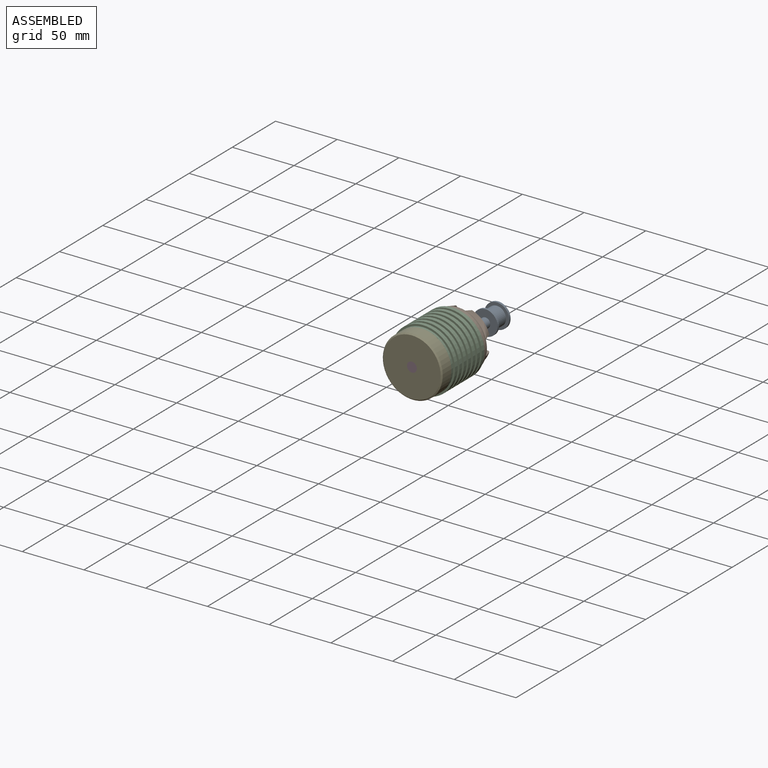
[diagram: assembled view]
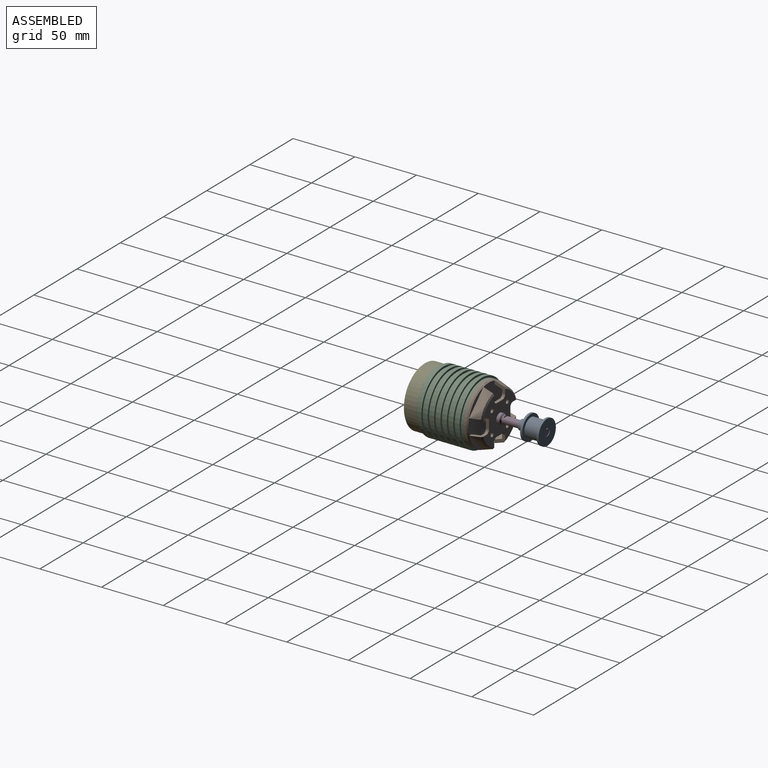
[diagram: assembled view, second angle]
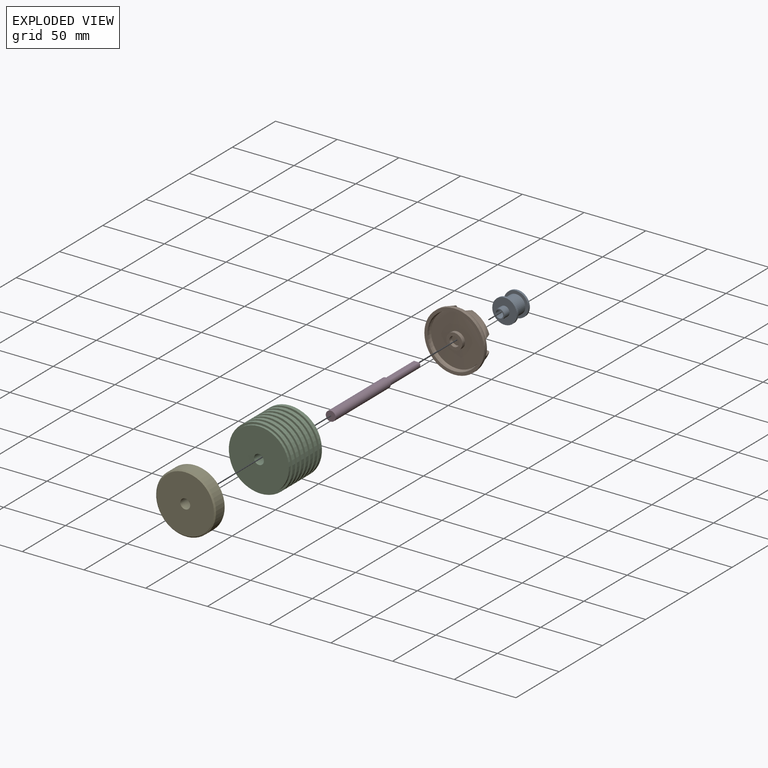
[diagram: exploded view]
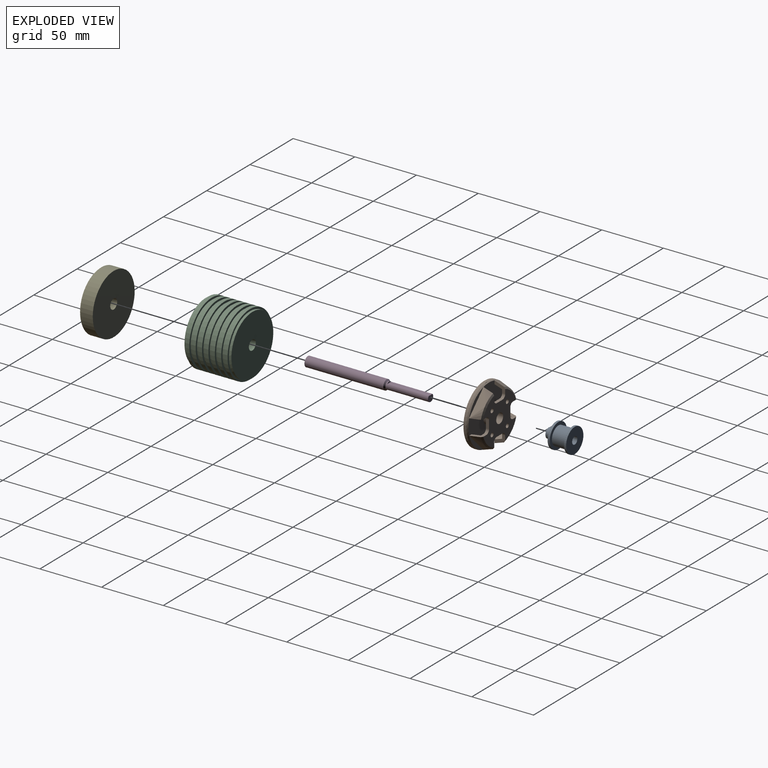
[diagram: exploded view, second angle]
ASSEMBLY  parts=5 mates=4
PART A: 11 faces, bbox 21x20x20 mm
  f0: cylinder r=7.5mm len=15mm, axis (-1,0,0), area 537mm2, adj f6,f7,f10
  f1: cylinder r=3mm len=21mm, axis (-1,0,0), area 390.8mm2, adj f2,f9,f10
  f2: plane 8x8mm, normal (1,0,0), area 22mm2, adj f1,f3
  f3: cylinder r=4mm len=8mm, axis (-1,0,0), area 150.8mm2, adj f2,f4
  f4: plane 20x20mm, normal (1,0,0), area 263.9mm2, adj f3,f5
  f5: cylinder r=10mm len=20mm, axis (-1,0,0), area 110mm2, adj f4,f6
  f6: plane 20x20mm, normal (-1,0,0), area 137.4mm2, adj f0,f5
  f7: plane 20x20mm, normal (1,0,0), area 137.4mm2, adj f0,f8
  f8: cylinder r=10mm len=20mm, axis (-1,0,0), area 110mm2, adj f7,f9
  f9: plane 20x20mm, normal (-1,0,0), area 285.9mm2, adj f1,f8
  f10: cylinder r=1.25mm len=4.77mm, axis (0,0,1), area 36mm2, adj f0,f1
PART B: 42 faces, bbox 48.5x12.4x48.5 mm
  f0: cone r=24.25mm half-angle=17.7deg, axis (0,-1,0), area 1147.4mm2, adj f6,f10,f11,f13,f17,f18,f20,f24
  f1: plane 38.04x38.04mm, normal (0,1,0), area 820mm2, adj f7,f11,f12,f13,f14,f15,f16,f18
  f2: cone r=21.87mm half-angle=17.7deg, axis (0,-1,0), area 729.4mm2, adj f3,f8,f10,f11,f13,f17,f18,f20
  f3: plane 36.29x36.29mm, normal (0,-1,0), area 678.5mm2, adj f2,f9,f11,f12,f13,f14,f15,f16
  f4: plane 48.5x48.5mm, normal (0,-1,0), area 361.3mm2, adj f6,f8
  f5: plane 13x13mm, normal (0,-1,0), area 82.5mm2, adj f7,f9
  f6: cylinder r=24.25mm len=48.5mm, axis (0,1,0), area 365.7mm2, adj f0,f4
  f7: cylinder r=4mm len=12.4mm, axis (0,1,0), area 311.6mm2, adj f1,f5
  f8: cylinder r=21.75mm len=43.5mm, axis (0,1,0), area 274.7mm2, adj f2,f4
  f9: cylinder r=6.5mm len=13mm, axis (0,1,0), area 404.3mm2, adj f3,f5
  f10: plane 12.7x3.6mm, normal (0,1,0), area 33.8mm2, adj f0,f2,f11,f13
  f11: plane 8.74x7.66mm, normal (0,0,-1), area 29.4mm2, adj f0,f1,f2,f3,f10,f16,f38
  f12: plane 6.7x2.5mm, normal (-1,0,0), area 16.7mm2, adj f1,f3,f15,f16
  f13: plane 8.74x7.66mm, normal (0,0,1), area 29.4mm2, adj f0,f1,f2,f3,f10,f15,f39
  f14: cylinder r=1.65mm len=3.3mm, axis (0,1,0), area 25.9mm2, adj f1,f3
  f15: cylinder r=3mm len=3mm, axis (0,-1,0), area 11.8mm2, adj f1,f3,f12,f13
  f16: cylinder r=3mm len=3mm, axis (0,1,0), area 11.8mm2, adj f1,f3,f11,f12
  f17: plane 12.7x3.6mm, normal (0,1,0), area 33.8mm2, adj f0,f2,f18,f20
  f18: plane 8.74x7.66mm, normal (-1,0,0), area 29.4mm2, adj f0,f1,f2,f3,f17,f23,f41
  f19: plane 6.7x2.5mm, normal (0,0,1), area 16.7mm2, adj f1,f3,f22,f23
  f20: plane 8.74x7.66mm, normal (1,0,0), area 29.4mm2, adj f0,f1,f2,f3,f17,f22,f38
  f21: cylinder r=1.65mm len=3.3mm, axis (0,1,0), area 25.9mm2, adj f1,f3
  f22: cylinder r=3mm len=3mm, axis (0,-1,0), area 11.8mm2, adj f1,f3,f19,f20
  f23: cylinder r=3mm len=3mm, axis (0,1,0), area 11.8mm2, adj f1,f3,f18,f19
  f24: plane 12.7x3.6mm, normal (0,1,0), area 33.8mm2, adj f0,f2,f25,f27
  f25: plane 8.74x7.66mm, normal (0,0,1), area 29.4mm2, adj f0,f1,f2,f3,f24,f30,f40
  f26: plane 6.7x2.5mm, normal (1,0,0), area 16.7mm2, adj f1,f3,f29,f30
  f27: plane 8.74x7.66mm, normal (0,0,-1), area 29.4mm2, adj f0,f1,f2,f3,f24,f29,f41
  f28: cylinder r=1.65mm len=3.3mm, axis (0,1,0), area 25.9mm2, adj f1,f3
  f29: cylinder r=3mm len=3mm, axis (0,-1,0), area 11.8mm2, adj f1,f3,f26,f27
  f30: cylinder r=3mm len=3mm, axis (0,1,0), area 11.8mm2, adj f1,f3,f25,f26
  f31: plane 47.67x47.67mm, normal (0,1,0), area 1750.8mm2, adj f0,f2,f32,f34
  f32: plane 8.74x7.66mm, normal (1,0,0), area 29.4mm2, adj f0,f1,f2,f3,f31,f37,f39
  f33: plane 6.7x2.5mm, normal (0,0,-1), area 16.7mm2, adj f1,f3,f36,f37
  f34: plane 8.74x7.66mm, normal (-1,0,0), area 29.4mm2, adj f0,f1,f2,f3,f31,f36,f40
  f35: cylinder r=1.65mm len=3.3mm, axis (0,1,0), area 25.9mm2, adj f1,f3
  f36: cylinder r=3mm len=3mm, axis (0,-1,0), area 11.8mm2, adj f1,f3,f33,f34
  f37: cylinder r=3mm len=3mm, axis (0,1,0), area 11.8mm2, adj f1,f3,f32,f33
  f38: cone r=20.05mm half-angle=53.9deg, axis (0,-1,0), area 31.7mm2, adj f0,f1,f11,f20
  f39: cone r=20.05mm half-angle=53.9deg, axis (0,-1,0), area 31.7mm2, adj f0,f1,f13,f32
  f40: cone r=20.05mm half-angle=53.9deg, axis (0,-1,0), area 31.7mm2, adj f0,f1,f25,f34
  f41: cone r=20.05mm half-angle=53.9deg, axis (0,-1,0), area 31.7mm2, adj f0,f1,f18,f27
PART C: 32 faces, bbox 51.7x38x51.7 mm
  f0: plane 51.65x51.65mm, normal (0,1,0), area 247.8mm2, adj f1,f29
  f1: cylinder r=25.82mm len=51.65mm, axis (0,1,0), area 486.8mm2, adj f0,f2
  f2: plane 51.65x51.65mm, normal (0,-1,0), area 247.8mm2, adj f1,f3
  f3: cylinder r=24.25mm len=48.5mm, axis (0,1,0), area 330.1mm2, adj f2,f4
  f4: plane 51.65x51.65mm, normal (0,1,0), area 247.8mm2, adj f3,f5
  f5: cylinder r=25.82mm len=51.65mm, axis (0,1,0), area 486.8mm2, adj f4,f6
  f6: plane 51.65x51.65mm, normal (0,-1,0), area 247.8mm2, adj f5,f7
  f7: cylinder r=24.25mm len=48.5mm, axis (0,1,0), area 330.1mm2, adj f6,f8
  f8: plane 51.65x51.65mm, normal (0,1,0), area 247.8mm2, adj f7,f9
  f9: cylinder r=25.82mm len=51.65mm, axis (0,1,0), area 486.8mm2, adj f8,f10
  f10: plane 51.65x51.65mm, normal (0,-1,0), area 247.8mm2, adj f9,f11
  f11: cylinder r=24.25mm len=48.5mm, axis (0,1,0), area 330.1mm2, adj f10,f12
  f12: plane 51.65x51.65mm, normal (0,1,0), area 247.8mm2, adj f11,f13
  f13: cylinder r=25.82mm len=51.65mm, axis (0,1,0), area 486.8mm2, adj f12,f14
  f14: plane 51.65x51.65mm, normal (0,-1,0), area 247.8mm2, adj f13,f15
  f15: cylinder r=24.25mm len=48.5mm, axis (0,1,0), area 304.7mm2, adj f14,f30
  f16: cylinder r=4mm len=38mm, axis (0,1,0), area 955mm2, adj f30,f31
  f17: cylinder r=24.25mm len=48.5mm, axis (0,1,0), area 304.7mm2, adj f18,f31
  f18: plane 51.65x51.65mm, normal (0,1,0), area 247.8mm2, adj f17,f19
  f19: cylinder r=25.82mm len=51.65mm, axis (0,1,0), area 486.8mm2, adj f18,f20
  f20: plane 51.65x51.65mm, normal (0,-1,0), area 247.8mm2, adj f19,f21
  f21: cylinder r=24.25mm len=48.5mm, axis (0,1,0), area 330.1mm2, adj f20,f22
  f22: plane 51.65x51.65mm, normal (0,1,0), area 247.8mm2, adj f21,f23
  f23: cylinder r=25.82mm len=51.65mm, axis (0,1,0), area 486.8mm2, adj f22,f24
  f24: plane 51.65x51.65mm, normal (0,-1,0), area 247.8mm2, adj f23,f25
  f25: cylinder r=24.25mm len=48.5mm, axis (0,1,0), area 330.1mm2, adj f24,f26
  f26: plane 51.65x51.65mm, normal (0,1,0), area 247.8mm2, adj f25,f27
  f27: cylinder r=25.82mm len=51.65mm, axis (0,1,0), area 486.8mm2, adj f26,f28
  f28: plane 51.65x51.65mm, normal (0,-1,0), area 247.8mm2, adj f27,f29
  f29: cylinder r=24.25mm len=48.5mm, axis (0,1,0), area 330.1mm2, adj f0,f28
  f30: plane 48.5x48.5mm, normal (0,-1,0), area 1797.2mm2, adj f15,f16
  f31: plane 48.5x48.5mm, normal (0,1,0), area 1797.2mm2, adj f16,f17
PART D: 7 faces, bbox 8x99.4x8 mm
  f0: plane 6x5mm, normal (0,1,0), area 25.2mm2, adj f1,f5
  f1: cylinder r=3mm len=34.5mm, axis (0,1,0), area 481.3mm2, adj f0,f2,f5,f6
  f2: cone r=4mm half-angle=45deg, axis (0,-1,0), area 31.1mm2, adj f1,f3
  f3: cylinder r=4mm len=63.9mm, axis (0,1,0), area 1606mm2, adj f2,f4
  f4: plane 8x8mm, normal (0,-1,0), area 50.3mm2, adj f3
  f5: plane 33.5x4.47mm, normal (0,0,1), area 149.8mm2, adj f0,f1,f6
  f6: plane 4.47x1mm, normal (0,1,0), area 3.1mm2, adj f1,f5
PART E: 5 faces, bbox 48.5x11x48.5 mm
  f0: plane 48.5x48.5mm, normal (0,1,0), area 1797.2mm2, adj f1,f3
  f1: cylinder r=24.25mm len=48.5mm, axis (0,1,0), area 1523.7mm2, adj f0,f4
  f2: plane 46.5x46.5mm, normal (0,-1,0), area 1648mm2, adj f3,f4
  f3: cylinder r=4mm len=11mm, axis (0,1,0), area 276.5mm2, adj f0,f2
  f4: cone r=24.25mm half-angle=45deg, axis (0,1,0), area 211mm2, adj f1,f2
PLACE A rot(axis=(0.58,-0.58,-0.58),120deg) t=(-20.22,29.35,3.17)mm
PLACE B t=(-20.22,-1.66,3.17)mm
PLACE C t=(-20.22,-1.66,3.17)mm
PLACE D t=(-20.22,-1.66,3.17)mm
PLACE E t=(-20.22,-1.66,3.17)mm
MATE fastened B.f0 <-> C.f1  axis (0,-1,0) through (-20.22,-14.06,3.17)mm
MATE fastened E.f1 <-> C.f1  axis (0,1,0) through (-20.22,-52.06,3.17)mm
MATE slider A.f0 <-> D.f1  axis (0,-1,0) through (-20.22,15.85,3.17)mm
MATE revolute D.f1 <-> E.f1  axis (0,-1,0) through (-20.22,-63.06,3.17)mm
